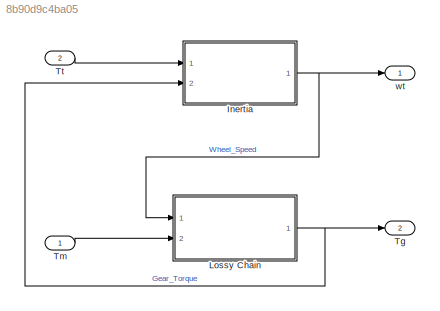
MODEL slx_8b90d9c4ba05
KIND model
WORKSPACE source: external: MAT-File  (data not in archive)
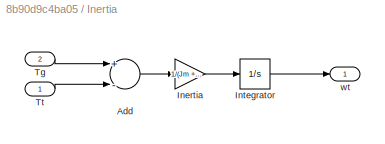
BLOCK [SubSystem] Inertia
  Ports = [2, 1]
  RequestExecContextInheritance = off
BLOCK [Sum] Inertia/Add
  InputSameDT = off
  Inputs = +-
  OutDataTypeStr = Inherit: Inherit via internal rule
  Ports = [2, 1]
  SaturateOnIntegerOverflow = off
BLOCK [Gain] Inertia/Inertia
  Gain = 1/(Jm + Jg + Jt + Jc)
  OutDataTypeStr = Inherit: Inherit via internal rule
  ParamDataTypeStr = Inherit: Inherit via internal rule
  SaturateOnIntegerOverflow = off
BLOCK [Integrator] Inertia/Integrator
  InitialCondition = w0
  Ports = [1, 1]
BLOCK [Inport] Inertia/Tg
  IconDisplay = Port number
  Port = 2
BLOCK [Inport] Inertia/Tt
  IconDisplay = Port number
BLOCK [Outport] Inertia/wt
  IconDisplay = Port number
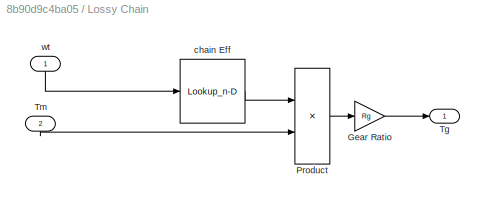
BLOCK [SubSystem] Lossy Chain
  Ports = [2, 1]
  RequestExecContextInheritance = off
BLOCK [Gain] Lossy Chain/Gear Ratio
  Gain = Rg
  OutDataTypeStr = Inherit: Inherit via internal rule
  ParamDataTypeStr = Inherit: Inherit via internal rule
  SaturateOnIntegerOverflow = off
BLOCK [Product] Lossy Chain/Product
  InputSameDT = off
  OutDataTypeStr = Inherit: Inherit via internal rule
  Ports = [2, 1]
  RndMeth = Floor
  SaturateOnIntegerOverflow = off
BLOCK [Outport] Lossy Chain/Tg
  IconDisplay = Port number
BLOCK [Inport] Lossy Chain/Tm
  IconDisplay = Port number
  Port = 2
BLOCK [Lookup_n-D] Lossy Chain/chain Eff
  BreakpointsForDimension1 = ceffx
  NumberOfTableDimensions = 1
  Ports = [1, 1]
  RndMeth = Simplest
  Table = ceffy
BLOCK [Inport] Lossy Chain/wt
  IconDisplay = Port number
BLOCK [Outport] Tg
  IconDisplay = Port number
  Port = 2
BLOCK [Inport] Tm
  IconDisplay = Port number
BLOCK [Inport] Tt
  IconDisplay = Port number
  Port = 2
BLOCK [Outport] wt
  IconDisplay = Port number
LINE Inertia/Add:1 -> Inertia/Inertia:1
LINE Inertia/Inertia:1 -> Inertia/Integrator:1
LINE Inertia/Integrator:1 -> Inertia/wt:1
LINE Inertia/Tg:1 -> Inertia/Add:1
LINE Inertia/Tt:1 -> Inertia/Add:2
NET Inertia:1 -> Lossy Chain:1, wt:1
LINE Lossy Chain/Gear Ratio:1 -> Lossy Chain/Tg:1
LINE Lossy Chain/Product:1 -> Lossy Chain/Gear Ratio:1
LINE Lossy Chain/Tm:1 -> Lossy Chain/Product:2
LINE Lossy Chain/chain Eff:1 -> Lossy Chain/Product:1
LINE Lossy Chain/wt:1 -> Lossy Chain/chain Eff:1
NET Lossy Chain:1 -> Inertia:2, Tg:1
LINE Tm:1 -> Lossy Chain:2
LINE Tt:1 -> Inertia:1
note: NET lines group one-source signal fan-out (src -> all destinations, sorted); 1:1 wires keep LINE
